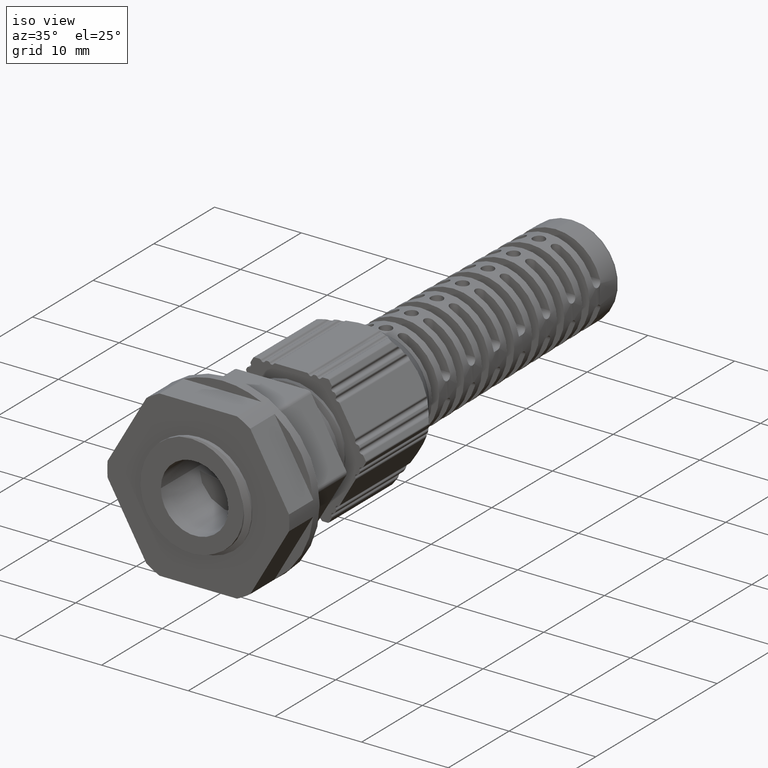
[diagram: clean part render]
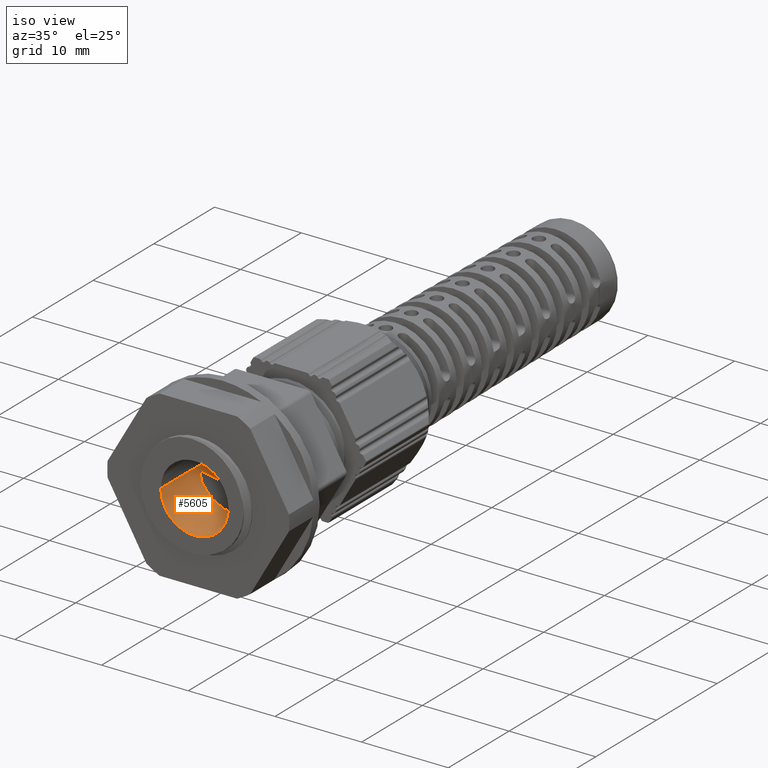
[diagram: same view with one face highlighted and labeled with its STEP entity id]
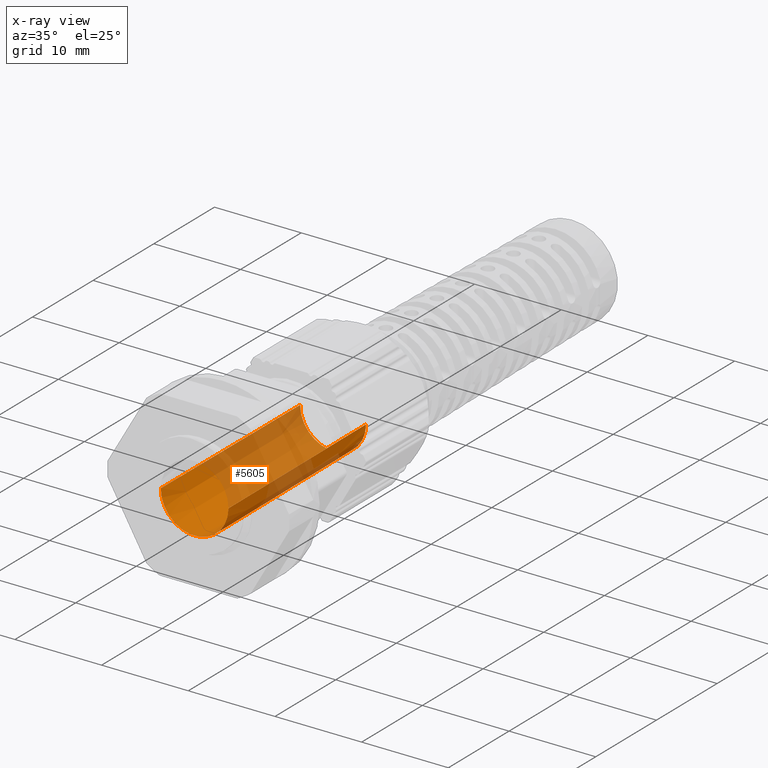
[diagram: x-ray of the same camera — body ghosted, the highlighted face saturated]
A machine part, iso view. The second image highlights one B-rep face of the part: STEP entity #5605.
The next image is the same camera in x-ray: the body ghosted, the highlighted face saturated — about 57% of this face is hidden behind the body in this view.
In plain terms, the highlighted conical surface has half-angle 0.251 deg.
Its self-contained STEP definition (entity closure, byte-faithful):
#2087 = CARTESIAN_POINT ( 'NONE',  ( -6.373259456536763600E-016, -14.67910728877723200, 0.0000000000000000000 ) ) ;
#2095 = FACE_OUTER_BOUND ( 'NONE', #5260, .T. ) ;
#2112 = DIRECTION ( 'NONE',  ( -6.595796117169337800E-017, -1.000000000000000000, 0.0000000000000000000 ) ) ;
#2114 = DIRECTION ( 'NONE',  ( 1.000000000000000000, 0.0000000000000000000, 0.0000000000000000000 ) ) ;
#2970 = ORIENTED_EDGE ( 'NONE', *, *, #12707, .T. ) ;
#2971 = ORIENTED_EDGE ( 'NONE', *, *, #12698, .F. ) ;
#4939 = VECTOR ( 'NONE', #15443, 1000.000000000000100 ) ;
#4942 = VECTOR ( 'NONE', #15503, 1000.000000000000100 ) ;
#4950 = AXIS2_PLACEMENT_3D ( 'NONE', #15273, #15282, #15280 ) ;
#4962 = AXIS2_PLACEMENT_3D ( 'NONE', #15330, #15340, #15343 ) ;
#4972 = CIRCLE ( 'NONE', #4962, 3.799999999999831100 ) ;
#5136 = ORIENTED_EDGE ( 'NONE', *, *, #12790, .T. ) ;
#5137 = ORIENTED_EDGE ( 'NONE', *, *, #12775, .F. ) ;
#5260 = EDGE_LOOP ( 'NONE', ( #2970, #5136, #2971, #5137 ) ) ;
#5605 = ADVANCED_FACE ( 'NONE', ( #2095 ), #20254, .F. ) ;
#6516 = CIRCLE ( 'NONE', #4950, 3.899999999999996800 ) ;
#12698 = EDGE_CURVE ( 'NONE', #17237, #17257, #6516, .T. ) ;
#12707 = EDGE_CURVE ( 'NONE', #17255, #17231, #4972, .T. ) ;
#12775 = EDGE_CURVE ( 'NONE', #17255, #17237, #15459, .T. ) ;
#12790 = EDGE_CURVE ( 'NONE', #17231, #17257, #15489, .T. ) ;
#15273 = CARTESIAN_POINT ( 'NONE',  ( -6.373259456536763600E-016, -14.67910728877723200, 0.0000000000000000000 ) ) ;
#15280 = DIRECTION ( 'NONE',  ( -1.000000000000000000, 0.0000000000000000000, 0.0000000000000000000 ) ) ;
#15282 = DIRECTION ( 'NONE',  ( 6.595796117169337800E-017, 1.000000000000000000, -0.0000000000000000000 ) ) ;
#15330 = CARTESIAN_POINT ( 'NONE',  ( -5.070800296857850500E-015, 8.133721624005829700, 0.0000000000000000000 ) ) ;
#15340 = DIRECTION ( 'NONE',  ( -2.224004456379627500E-016, 1.000000000000000000, -0.0000000000000000000 ) ) ;
#15343 = DIRECTION ( 'NONE',  ( 1.000000000000000000, 0.0000000000000000000, 0.0000000000000000000 ) ) ;
#15416 = CARTESIAN_POINT ( 'NONE',  ( 3.899999999999996400, -14.67910728877723200, 0.0000000000000000000 ) ) ;
#15443 = DIRECTION ( 'NONE',  ( 0.004383456328175475500, -0.9999903926091584500, 0.0000000000000000000 ) ) ;
#15459 = LINE ( 'NONE', #15416, #4939 ) ;
#15488 = CARTESIAN_POINT ( 'NONE',  ( -3.899999999999997200, -14.67910728877723200, 4.776122516674673300E-016 ) ) ;
#15489 = LINE ( 'NONE', #15488, #4942 ) ;
#15503 = DIRECTION ( 'NONE',  ( -0.004383456328175606500, -0.9999903926091584500, 5.368185761502386000E-019 ) ) ;
#17231 = VERTEX_POINT ( 'NONE', #19677 ) ;
#17237 = VERTEX_POINT ( 'NONE', #19674 ) ;
#17255 = VERTEX_POINT ( 'NONE', #19646 ) ;
#17257 = VERTEX_POINT ( 'NONE', #19664 ) ;
#19646 = CARTESIAN_POINT ( 'NONE',  ( 3.799999999999825700, 8.133721624005829700, 0.0000000000000000000 ) ) ;
#19664 = CARTESIAN_POINT ( 'NONE',  ( -3.899999999999997200, -14.67910728877723200, 4.776122516674673300E-016 ) ) ;
#19674 = CARTESIAN_POINT ( 'NONE',  ( 3.899999999999996400, -14.67910728877723200, 0.0000000000000000000 ) ) ;
#19677 = CARTESIAN_POINT ( 'NONE',  ( -3.799999999999836000, 8.133721624005829700, 4.714890176717208900E-016 ) ) ;
#20254 = CONICAL_SURFACE ( 'NONE', #20258, 3.899999999999996800, 0.004383470366088881000 ) ;
#20258 = AXIS2_PLACEMENT_3D ( 'NONE', #2087, #2112, #2114 ) ;